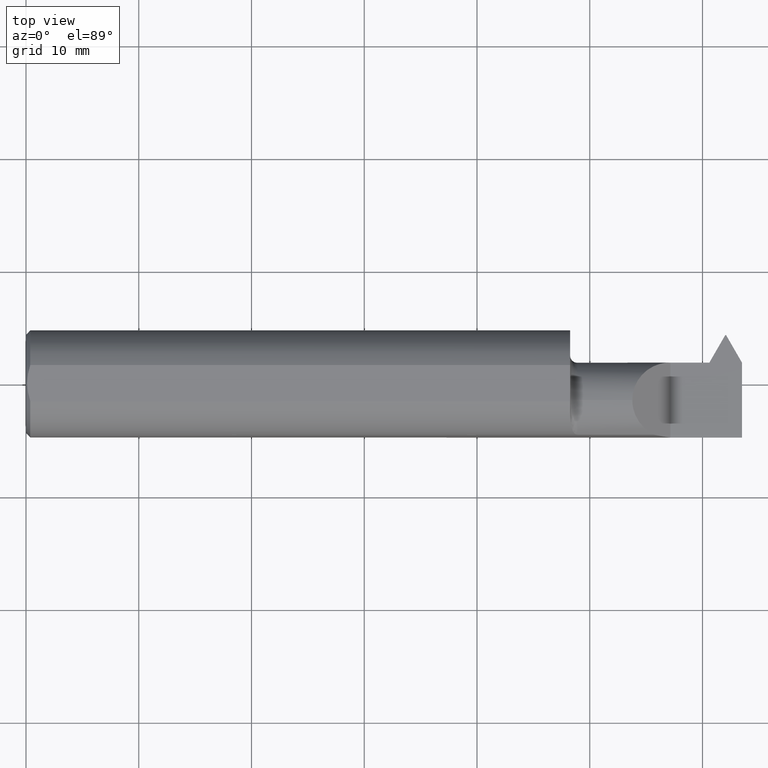
[diagram: clean part render]
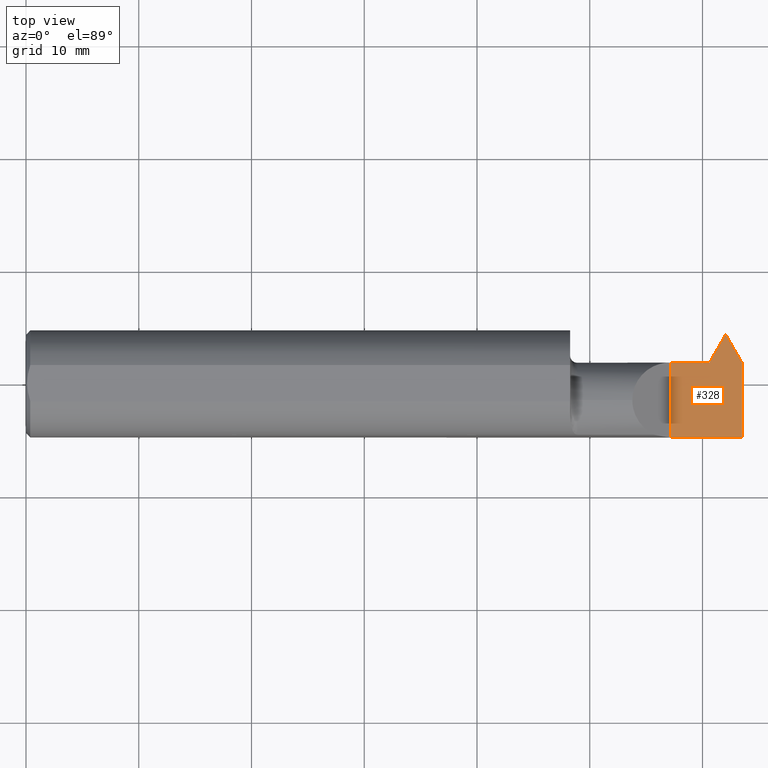
[diagram: same view with one face highlighted and labeled with its STEP entity id]
A machine part, top view. The second image highlights one B-rep face of the part: STEP entity #328.
In plain terms, the highlighted planar face has unit normal (-0, 0, -1).
Its self-contained STEP definition (entity closure, byte-faithful):
#23 = VECTOR ( 'NONE', #64, 39.37007874015748143 ) ;
#37 = EDGE_LOOP ( 'NONE', ( #881, #495, #284, #307, #370, #807, #801, #868 ) ) ;
#64 = DIRECTION ( 'NONE',  ( 1.000000000000000000, 0.000000000000000000, 0.000000000000000000 ) ) ;
#76 = DIRECTION ( 'NONE',  ( -1.000000000000000000, 0.000000000000000000, 3.673940397442056910E-16 ) ) ;
#121 = CARTESIAN_POINT ( 'NONE',  ( 1.900000000000000133, 0.07464999999999995250, 2.204364238465232864E-16 ) ) ;
#139 = DIRECTION ( 'NONE',  ( 0.4999999999999942268, 0.8660254037844419273, -0.000000000000000000 ) ) ;
#162 = CARTESIAN_POINT ( 'NONE',  ( 2.500000000000000000, -0.2500000000000000555, 0.000000000000000000 ) ) ;
#171 = LINE ( 'NONE', #451, #418 ) ;
#188 = EDGE_CURVE ( 'NONE', #369, #701, #266, .T. ) ;
#200 = LINE ( 'NONE', #818, #891 ) ;
#209 = CARTESIAN_POINT ( 'NONE',  ( 2.441500000000000004, 0.1706500000000000239, 0.000000000000000000 ) ) ;
#220 = CARTESIAN_POINT ( 'NONE',  ( 2.250000000000000000, -0.1873499999999999888, 9.184850993605143507E-17 ) ) ;
#227 = CARTESIAN_POINT ( 'NONE',  ( 2.500000000000000000, -0.1873499999999999888, 0.000000000000000000 ) ) ;
#254 = CARTESIAN_POINT ( 'NONE',  ( 2.444500000000000117, 0.1706500000000000239, 0.000000000000000000 ) ) ;
#266 = LINE ( 'NONE', #692, #800 ) ;
#276 = DIRECTION ( 'NONE',  ( 0.4999999999999948375, -0.8660254037844417052, 0.000000000000000000 ) ) ;
#284 = ORIENTED_EDGE ( 'NONE', *, *, #610, .F. ) ;
#307 = ORIENTED_EDGE ( 'NONE', *, *, #571, .F. ) ;
#317 = VERTEX_POINT ( 'NONE', #794 ) ;
#328 = ADVANCED_FACE ( 'NONE', ( #363 ), #372, .F. ) ;
#335 = LINE ( 'NONE', #345, #490 ) ;
#337 = VERTEX_POINT ( 'NONE', #849 ) ;
#339 = CARTESIAN_POINT ( 'NONE',  ( 1.900000000000000133, 0.1706499999999999684, 2.204364238465232864E-16 ) ) ;
#345 = CARTESIAN_POINT ( 'NONE',  ( 2.386074374157796996, 0.07464999999999995250, 0.000000000000000000 ) ) ;
#363 = FACE_OUTER_BOUND ( 'NONE', #37, .T. ) ;
#369 = VERTEX_POINT ( 'NONE', #220 ) ;
#370 = ORIENTED_EDGE ( 'NONE', *, *, #188, .F. ) ;
#372 = PLANE ( 'NONE',  #656 ) ;
#379 = VECTOR ( 'NONE', #397, 39.37007874015748143 ) ;
#383 = DIRECTION ( 'NONE',  ( 0.000000000000000000, -1.000000000000000000, 0.000000000000000000 ) ) ;
#397 = DIRECTION ( 'NONE',  ( 1.000000000000000000, 0.000000000000000000, 0.000000000000000000 ) ) ;
#398 = LINE ( 'NONE', #904, #530 ) ;
#418 = VECTOR ( 'NONE', #383, 39.37007874015748143 ) ;
#419 = VECTOR ( 'NONE', #139, 39.37007874015748854 ) ;
#451 = CARTESIAN_POINT ( 'NONE',  ( 2.500000000000000000, 0.000000000000000000, 0.000000000000000000 ) ) ;
#456 = VERTEX_POINT ( 'NONE', #878 ) ;
#474 = DIRECTION ( 'NONE',  ( -1.000000000000000000, -0.000000000000000000, -0.000000000000000000 ) ) ;
#490 = VECTOR ( 'NONE', #544, 39.37007874015748143 ) ;
#495 = ORIENTED_EDGE ( 'NONE', *, *, #816, .F. ) ;
#515 = VERTEX_POINT ( 'NONE', #254 ) ;
#530 = VECTOR ( 'NONE', #276, 39.37007874015748143 ) ;
#544 = DIRECTION ( 'NONE',  ( 1.000000000000000000, -0.000000000000000000, -0.000000000000000000 ) ) ;
#551 = LINE ( 'NONE', #121, #379 ) ;
#560 = EDGE_CURVE ( 'NONE', #317, #804, #171, .T. ) ;
#566 = EDGE_CURVE ( 'NONE', #649, #515, #664, .T. ) ;
#570 = LINE ( 'NONE', #209, #419 ) ;
#571 = EDGE_CURVE ( 'NONE', #701, #456, #551, .T. ) ;
#610 = EDGE_CURVE ( 'NONE', #456, #337, #335, .T. ) ;
#611 = CARTESIAN_POINT ( 'NONE',  ( 2.250000000000000000, 0.07464999999999995250, 2.204364238465232864E-16 ) ) ;
#649 = VERTEX_POINT ( 'NONE', #753 ) ;
#652 = EDGE_CURVE ( 'NONE', #515, #317, #398, .T. ) ;
#656 = AXIS2_PLACEMENT_3D ( 'NONE', #162, #725, #76 ) ;
#664 = LINE ( 'NONE', #339, #23 ) ;
#692 = CARTESIAN_POINT ( 'NONE',  ( 2.250000000000000000, -0.2500000000000000555, 9.184850993605143507E-17 ) ) ;
#701 = VERTEX_POINT ( 'NONE', #611 ) ;
#725 = DIRECTION ( 'NONE',  ( -3.673940397442056910E-16, 0.000000000000000000, -1.000000000000000000 ) ) ;
#753 = CARTESIAN_POINT ( 'NONE',  ( 2.441500000000000004, 0.1706500000000000239, 0.000000000000000000 ) ) ;
#794 = CARTESIAN_POINT ( 'NONE',  ( 2.500000000000000000, 0.07452118017992603871, 0.000000000000000000 ) ) ;
#800 = VECTOR ( 'NONE', #834, 39.37007874015748143 ) ;
#801 = ORIENTED_EDGE ( 'NONE', *, *, #560, .F. ) ;
#804 = VERTEX_POINT ( 'NONE', #227 ) ;
#807 = ORIENTED_EDGE ( 'NONE', *, *, #883, .F. ) ;
#816 = EDGE_CURVE ( 'NONE', #337, #649, #570, .T. ) ;
#818 = CARTESIAN_POINT ( 'NONE',  ( 3.374459510989174253E-31, -0.1873499999999999610, 9.184850993605140056E-16 ) ) ;
#834 = DIRECTION ( 'NONE',  ( -0.000000000000000000, 1.000000000000000000, -0.000000000000000000 ) ) ;
#849 = CARTESIAN_POINT ( 'NONE',  ( 2.386074374157796996, 0.07464999999999995250, 0.000000000000000000 ) ) ;
#868 = ORIENTED_EDGE ( 'NONE', *, *, #652, .F. ) ;
#878 = CARTESIAN_POINT ( 'NONE',  ( 2.376520281605562168, 0.07464999999999995250, 0.000000000000000000 ) ) ;
#881 = ORIENTED_EDGE ( 'NONE', *, *, #566, .F. ) ;
#883 = EDGE_CURVE ( 'NONE', #804, #369, #200, .T. ) ;
#891 = VECTOR ( 'NONE', #474, 39.37007874015748143 ) ;
#904 = CARTESIAN_POINT ( 'NONE',  ( 2.444500000000000117, 0.1706500000000000239, 0.000000000000000000 ) ) ;